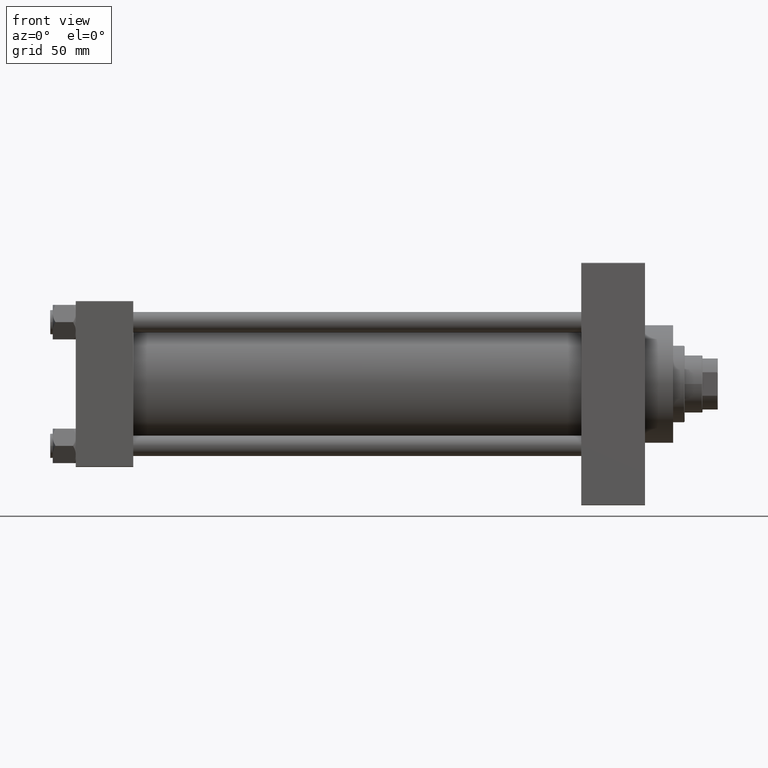
[diagram: clean part render]
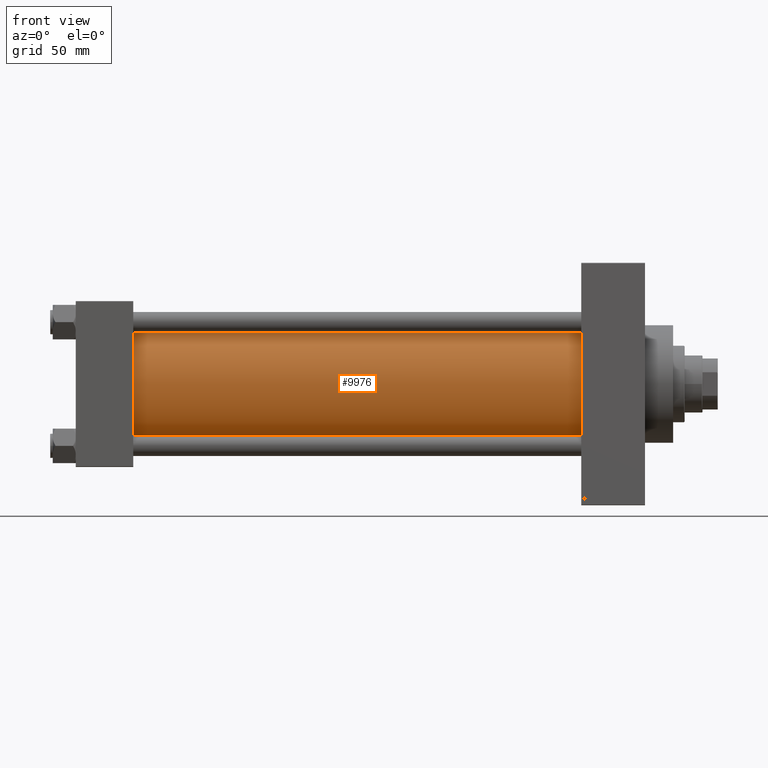
[diagram: same view with one face highlighted and labeled with its STEP entity id]
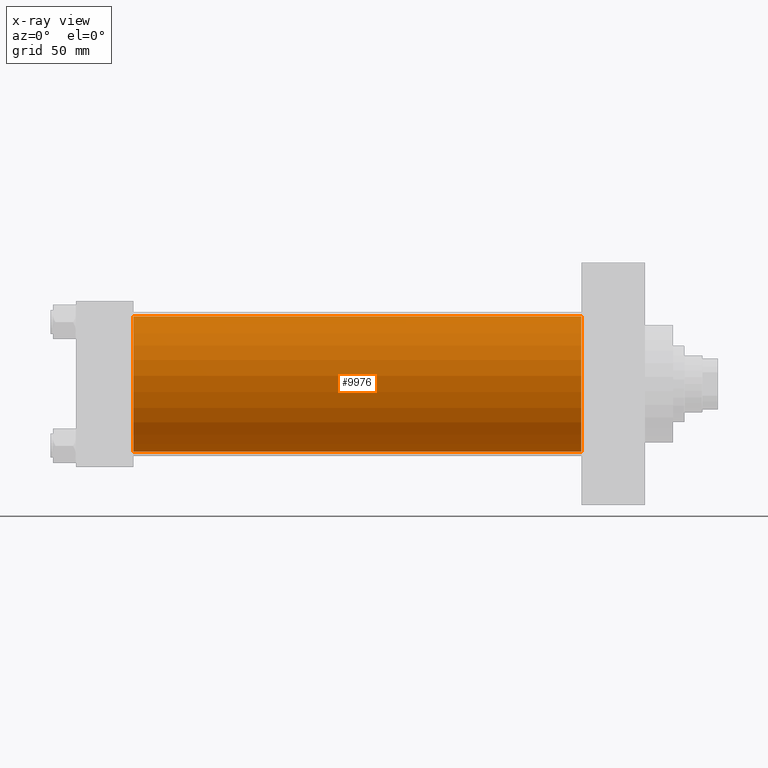
[diagram: x-ray of the same camera — body ghosted, the highlighted face saturated]
A machine part, front view. The second image highlights one B-rep face of the part: STEP entity #9976.
The next image is the same camera in x-ray: the body ghosted, the highlighted face saturated — about 0% of this face is hidden behind the body in this view.
In plain terms, the highlighted cylindrical surface (partial cylindrical patch) has radius 53 mm, axis along (-1, -0, -0).
Its self-contained STEP definition (entity closure, byte-faithful):
#381 = VERTEX_POINT ( 'NONE', #23907 ) ;
#780 = EDGE_CURVE ( 'NONE', #381, #34481, #27080, .T. ) ;
#2496 = CARTESIAN_POINT ( 'NONE',  ( 395.9999999999999432, 3.888542821515762466E-15, -53.00000000000000711 ) ) ;
#3067 = CIRCLE ( 'NONE', #4649, 53.00000000000000711 ) ;
#4649 = AXIS2_PLACEMENT_3D ( 'NONE', #15910, #39695, #39443 ) ;
#5305 = CARTESIAN_POINT ( 'NONE',  ( 44.99999999999998579, -2.602085213965210642E-15, 53.00000000000000711 ) ) ;
#6436 = DIRECTION ( 'NONE',  ( 1.000000000000000000, 0.000000000000000000, 0.000000000000000000 ) ) ;
#6830 = ORIENTED_EDGE ( 'NONE', *, *, #20512, .F. ) ;
#7389 = DIRECTION ( 'NONE',  ( -1.000000000000000000, -0.000000000000000000, -0.000000000000000000 ) ) ;
#8584 = CARTESIAN_POINT ( 'NONE',  ( 44.99999999999998579, 3.888542821515762466E-15, -53.00000000000000711 ) ) ;
#9976 = ADVANCED_FACE ( 'NONE', ( #41539 ), #37231, .T. ) ;
#13042 = VERTEX_POINT ( 'NONE', #2496 ) ;
#13225 = AXIS2_PLACEMENT_3D ( 'NONE', #49633, #7389, #33443 ) ;
#14129 = CARTESIAN_POINT ( 'NONE',  ( 395.9999999999999432, 3.888542821515762466E-15, -53.00000000000000711 ) ) ;
#14789 = ORIENTED_EDGE ( 'NONE', *, *, #45400, .F. ) ;
#15910 = CARTESIAN_POINT ( 'NONE',  ( 44.99999999999998579, -2.602085213965210642E-15, 0.000000000000000000 ) ) ;
#17674 = LINE ( 'NONE', #14129, #38037 ) ;
#20512 = EDGE_CURVE ( 'NONE', #381, #13042, #43348, .T. ) ;
#21311 = EDGE_LOOP ( 'NONE', ( #14789, #6830, #46092, #43240 ) ) ;
#23907 = CARTESIAN_POINT ( 'NONE',  ( 395.9999999999999432, -2.602085213965210642E-15, 53.00000000000000711 ) ) ;
#25164 = VECTOR ( 'NONE', #42028, 1000.000000000000000 ) ;
#25391 = EDGE_CURVE ( 'NONE', #34481, #27123, #3067, .T. ) ;
#27080 = LINE ( 'NONE', #34449, #25164 ) ;
#27123 = VERTEX_POINT ( 'NONE', #8584 ) ;
#31266 = AXIS2_PLACEMENT_3D ( 'NONE', #41362, #6436, #33519 ) ;
#33118 = DIRECTION ( 'NONE',  ( -1.000000000000000000, -0.000000000000000000, -0.000000000000000000 ) ) ;
#33443 = DIRECTION ( 'NONE',  ( 0.000000000000000000, 0.000000000000000000, 1.000000000000000000 ) ) ;
#33519 = DIRECTION ( 'NONE',  ( 0.000000000000000000, 0.000000000000000000, -1.000000000000000000 ) ) ;
#34449 = CARTESIAN_POINT ( 'NONE',  ( 395.9999999999999432, -2.602085213965210642E-15, 53.00000000000000711 ) ) ;
#34481 = VERTEX_POINT ( 'NONE', #5305 ) ;
#37231 = CYLINDRICAL_SURFACE ( 'NONE', #13225, 53.00000000000000711 ) ;
#38037 = VECTOR ( 'NONE', #33118, 1000.000000000000000 ) ;
#39443 = DIRECTION ( 'NONE',  ( 0.000000000000000000, 0.000000000000000000, 1.000000000000000000 ) ) ;
#39695 = DIRECTION ( 'NONE',  ( 1.000000000000000000, -0.000000000000000000, 0.000000000000000000 ) ) ;
#41362 = CARTESIAN_POINT ( 'NONE',  ( 395.9999999999999432, -2.602085213965210642E-15, 0.000000000000000000 ) ) ;
#41539 = FACE_OUTER_BOUND ( 'NONE', #21311, .T. ) ;
#42028 = DIRECTION ( 'NONE',  ( -1.000000000000000000, -0.000000000000000000, -0.000000000000000000 ) ) ;
#43240 = ORIENTED_EDGE ( 'NONE', *, *, #25391, .T. ) ;
#43348 = CIRCLE ( 'NONE', #31266, 53.00000000000000711 ) ;
#45400 = EDGE_CURVE ( 'NONE', #13042, #27123, #17674, .T. ) ;
#46092 = ORIENTED_EDGE ( 'NONE', *, *, #780, .T. ) ;
#49633 = CARTESIAN_POINT ( 'NONE',  ( 395.9999999999999432, -2.602085213965210642E-15, 0.000000000000000000 ) ) ;